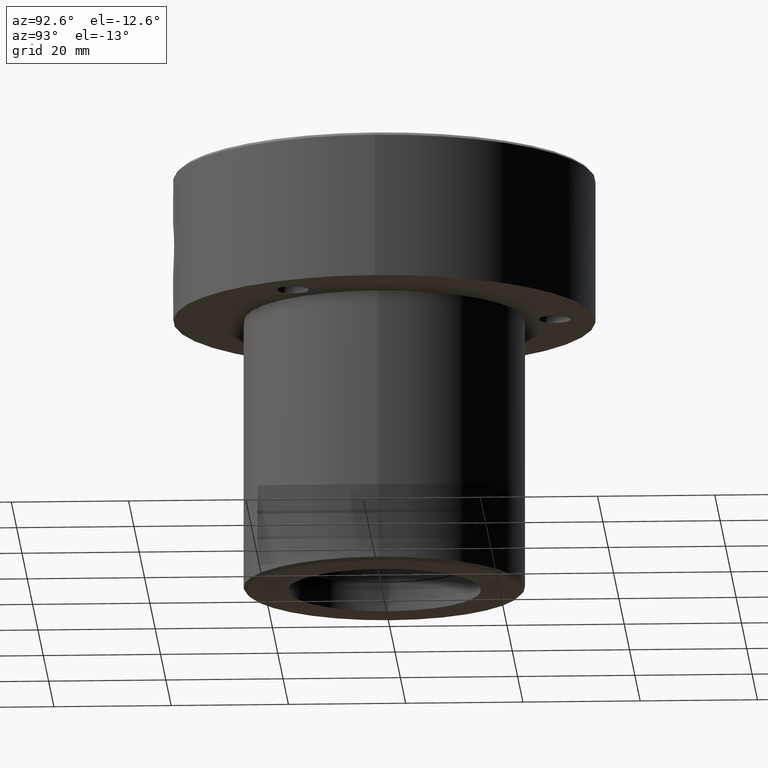
[diagram: clean part render]
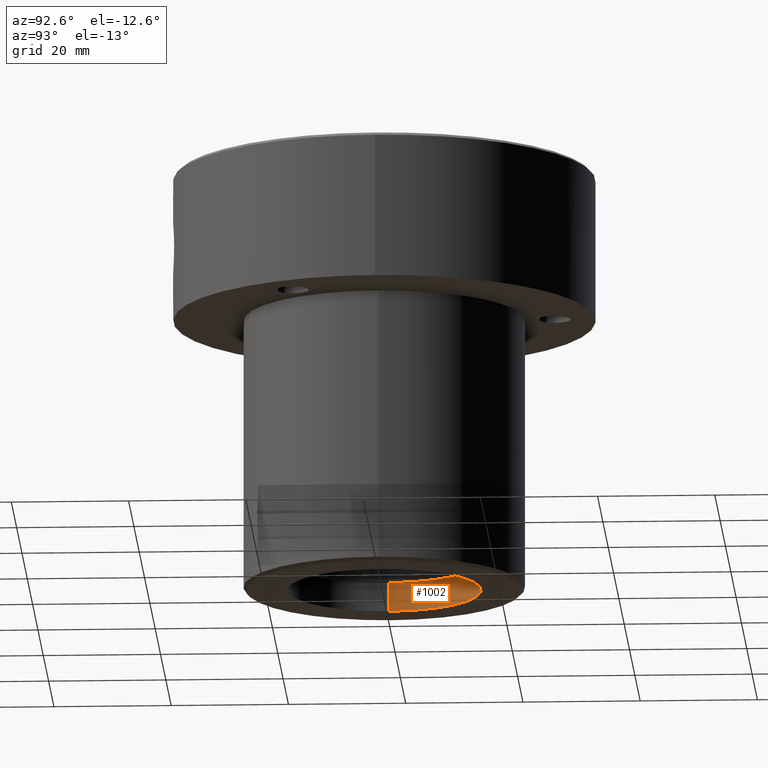
[diagram: same view with one face highlighted and labeled with its STEP entity id]
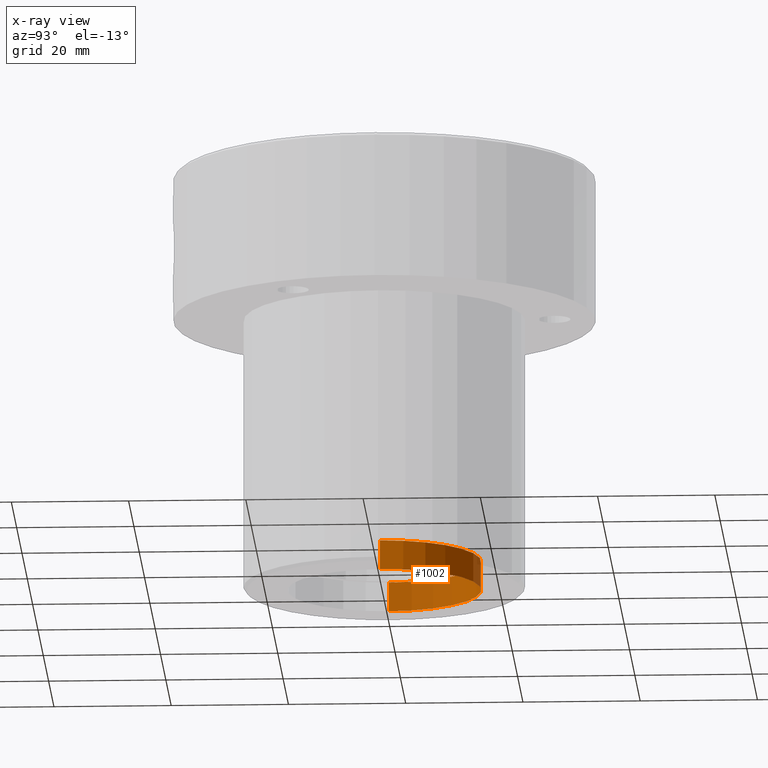
[diagram: x-ray of the same camera — body ghosted, the highlighted face saturated]
A machine part, auxiliary view. The second image highlights one B-rep face of the part: STEP entity #1002.
The next image is the same camera in x-ray: the body ghosted, the highlighted face saturated — about 1% of this face is hidden behind the body in this view.
In plain terms, the highlighted cylindrical surface (partial cylindrical patch) has radius 16.5 mm, axis along (-0, -0, -1).
Its self-contained STEP definition (entity closure, byte-faithful):
#18 = LINE ( 'NONE', #206, #559 ) ;
#32 = VERTEX_POINT ( 'NONE', #514 ) ;
#36 = DIRECTION ( 'NONE',  ( -0.000000000000000000, -0.000000000000000000, -1.000000000000000000 ) ) ;
#49 = CARTESIAN_POINT ( 'NONE',  ( 16.50000000000000000, 2.020667218593133100E-15, -66.99999999999998579 ) ) ;
#146 = AXIS2_PLACEMENT_3D ( 'NONE', #331, #354, #1142 ) ;
#187 = CIRCLE ( 'NONE', #610, 16.50000000000000000 ) ;
#204 = VERTEX_POINT ( 'NONE', #49 ) ;
#206 = CARTESIAN_POINT ( 'NONE',  ( 16.50000000000000000, 2.020667218593133100E-15, -66.99999999999998579 ) ) ;
#236 = DIRECTION ( 'NONE',  ( -1.000000000000000000, 0.000000000000000000, 0.000000000000000000 ) ) ;
#283 = VECTOR ( 'NONE', #1141, 1000.000000000000000 ) ;
#287 = ORIENTED_EDGE ( 'NONE', *, *, #296, .T. ) ;
#296 = EDGE_CURVE ( 'NONE', #32, #1190, #933, .T. ) ;
#297 = ORIENTED_EDGE ( 'NONE', *, *, #964, .F. ) ;
#331 = CARTESIAN_POINT ( 'NONE',  ( 0.000000000000000000, 0.000000000000000000, -72.00000000000000000 ) ) ;
#354 = DIRECTION ( 'NONE',  ( 0.000000000000000000, 0.000000000000000000, -1.000000000000000000 ) ) ;
#418 = EDGE_CURVE ( 'NONE', #204, #1238, #18, .T. ) ;
#422 = CARTESIAN_POINT ( 'NONE',  ( -16.50000000000000000, 0.000000000000000000, -72.00000000000000000 ) ) ;
#428 = CYLINDRICAL_SURFACE ( 'NONE', #1042, 16.50000000000000000 ) ;
#500 = DIRECTION ( 'NONE',  ( 0.000000000000000000, 0.000000000000000000, -1.000000000000000000 ) ) ;
#514 = CARTESIAN_POINT ( 'NONE',  ( -16.50000000000000000, 0.000000000000000000, -66.99999999999998579 ) ) ;
#559 = VECTOR ( 'NONE', #1167, 1000.000000000000000 ) ;
#564 = CIRCLE ( 'NONE', #146, 16.50000000000000000 ) ;
#599 = FACE_OUTER_BOUND ( 'NONE', #1255, .T. ) ;
#610 = AXIS2_PLACEMENT_3D ( 'NONE', #699, #500, #236 ) ;
#699 = CARTESIAN_POINT ( 'NONE',  ( 0.000000000000000000, 0.000000000000000000, -66.99999999999998579 ) ) ;
#779 = ORIENTED_EDGE ( 'NONE', *, *, #418, .F. ) ;
#900 = CARTESIAN_POINT ( 'NONE',  ( 0.000000000000000000, 0.000000000000000000, -66.99999999999998579 ) ) ;
#911 = DIRECTION ( 'NONE',  ( -1.000000000000000000, 0.000000000000000000, 0.000000000000000000 ) ) ;
#933 = LINE ( 'NONE', #1034, #283 ) ;
#964 = EDGE_CURVE ( 'NONE', #32, #204, #187, .T. ) ;
#1002 = ADVANCED_FACE ( 'NONE', ( #599 ), #428, .F. ) ;
#1023 = CARTESIAN_POINT ( 'NONE',  ( 16.50000000000000000, 2.020667218593133100E-15, -72.00000000000000000 ) ) ;
#1034 = CARTESIAN_POINT ( 'NONE',  ( -16.50000000000000000, 0.000000000000000000, -66.99999999999998579 ) ) ;
#1042 = AXIS2_PLACEMENT_3D ( 'NONE', #900, #36, #911 ) ;
#1136 = EDGE_CURVE ( 'NONE', #1190, #1238, #564, .T. ) ;
#1141 = DIRECTION ( 'NONE',  ( -0.000000000000000000, -0.000000000000000000, -1.000000000000000000 ) ) ;
#1142 = DIRECTION ( 'NONE',  ( -1.000000000000000000, 0.000000000000000000, 0.000000000000000000 ) ) ;
#1144 = ORIENTED_EDGE ( 'NONE', *, *, #1136, .T. ) ;
#1167 = DIRECTION ( 'NONE',  ( -0.000000000000000000, -0.000000000000000000, -1.000000000000000000 ) ) ;
#1190 = VERTEX_POINT ( 'NONE', #422 ) ;
#1238 = VERTEX_POINT ( 'NONE', #1023 ) ;
#1255 = EDGE_LOOP ( 'NONE', ( #779, #297, #287, #1144 ) ) ;